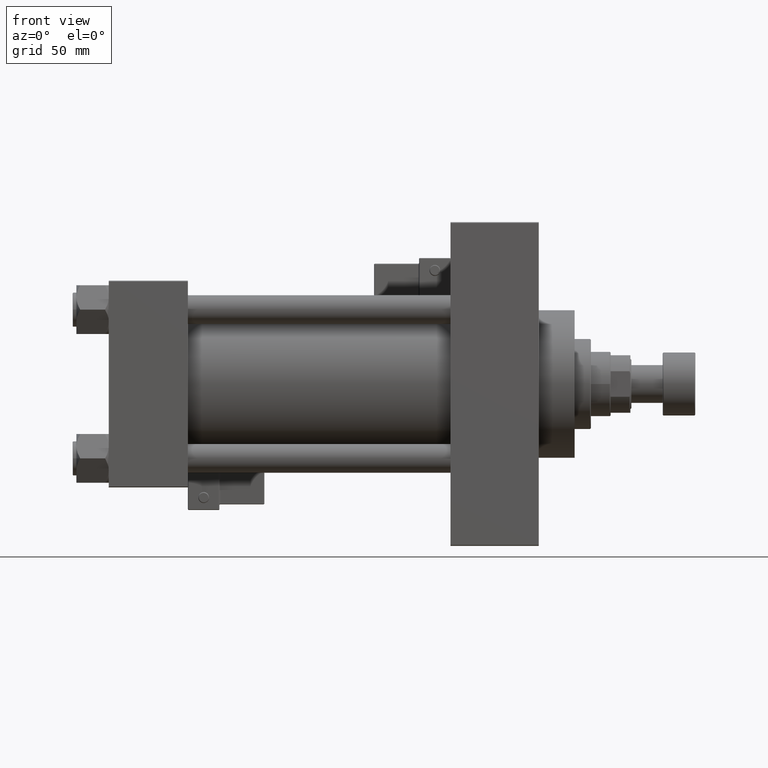
[diagram: clean part render]
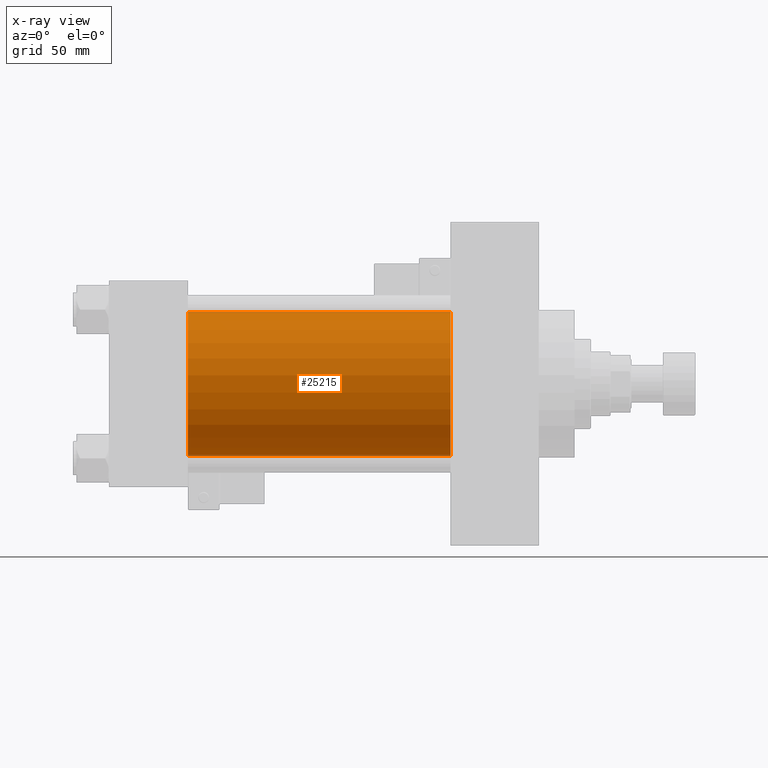
[diagram: x-ray — body ghosted, one internal face saturated and labeled with its STEP entity id]
A machine part, front view, then the same camera in x-ray: the body is ghosted and one INTERNAL B-rep face — a face not visible from any outside direction — is saturated and labeled: STEP entity #25215.
In plain terms, the highlighted cylindrical surface (partial cylindrical patch) has radius 40 mm, axis along (-1, -0, -0).
Its self-contained STEP definition (entity closure, byte-faithful):
#222 = ORIENTED_EDGE ( 'NONE', *, *, #26656, .F. ) ;
#1703 = FACE_OUTER_BOUND ( 'NONE', #46277, .T. ) ;
#2428 = VERTEX_POINT ( 'NONE', #12842 ) ;
#2452 = AXIS2_PLACEMENT_3D ( 'NONE', #43716, #8832, #24376 ) ;
#2476 = VECTOR ( 'NONE', #12441, 1000.000000000000000 ) ;
#5055 = AXIS2_PLACEMENT_3D ( 'NONE', #13259, #5875, #28785 ) ;
#5875 = DIRECTION ( 'NONE',  ( 1.000000000000000000, 0.000000000000000000, 0.000000000000000000 ) ) ;
#6160 = DIRECTION ( 'NONE',  ( -1.000000000000000000, -0.000000000000000000, -0.000000000000000000 ) ) ;
#7949 = ORIENTED_EDGE ( 'NONE', *, *, #48172, .T. ) ;
#8186 = VERTEX_POINT ( 'NONE', #9815 ) ;
#8691 = VERTEX_POINT ( 'NONE', #13705 ) ;
#8832 = DIRECTION ( 'NONE',  ( -1.000000000000000000, -0.000000000000000000, -0.000000000000000000 ) ) ;
#9815 = CARTESIAN_POINT ( 'NONE',  ( 190.0000000000000000, 2.296501982624201990E-15, -40.00000000000000000 ) ) ;
#10640 = VECTOR ( 'NONE', #6160, 1000.000000000000000 ) ;
#12441 = DIRECTION ( 'NONE',  ( -1.000000000000000000, -0.000000000000000000, -0.000000000000000000 ) ) ;
#12842 = CARTESIAN_POINT ( 'NONE',  ( 44.00000000000000000, 2.296501982624201990E-15, -40.00000000000000000 ) ) ;
#13259 = CARTESIAN_POINT ( 'NONE',  ( 190.0000000000000000, -2.602085213965210642E-15, 0.000000000000000000 ) ) ;
#13705 = CARTESIAN_POINT ( 'NONE',  ( 190.0000000000000000, -2.602085213965210642E-15, 40.00000000000000000 ) ) ;
#14173 = CARTESIAN_POINT ( 'NONE',  ( 44.00000000000000000, -2.602085213965210642E-15, 0.000000000000000000 ) ) ;
#15775 = LINE ( 'NONE', #35871, #2476 ) ;
#17223 = CYLINDRICAL_SURFACE ( 'NONE', #2452, 40.00000000000000000 ) ;
#19701 = DIRECTION ( 'NONE',  ( 1.000000000000000000, 0.000000000000000000, 0.000000000000000000 ) ) ;
#20826 = ORIENTED_EDGE ( 'NONE', *, *, #26890, .F. ) ;
#22986 = VERTEX_POINT ( 'NONE', #37700 ) ;
#23520 = DIRECTION ( 'NONE',  ( 0.000000000000000000, 0.000000000000000000, -1.000000000000000000 ) ) ;
#24376 = DIRECTION ( 'NONE',  ( 0.000000000000000000, 0.000000000000000000, 1.000000000000000000 ) ) ;
#25215 = ADVANCED_FACE ( 'NONE', ( #1703 ), #17223, .F. ) ;
#26656 = EDGE_CURVE ( 'NONE', #22986, #2428, #31771, .T. ) ;
#26890 = EDGE_CURVE ( 'NONE', #8691, #22986, #44865, .T. ) ;
#27716 = AXIS2_PLACEMENT_3D ( 'NONE', #14173, #19701, #23520 ) ;
#28785 = DIRECTION ( 'NONE',  ( 0.000000000000000000, 0.000000000000000000, -1.000000000000000000 ) ) ;
#31771 = CIRCLE ( 'NONE', #27716, 40.00000000000000000 ) ;
#31856 = CIRCLE ( 'NONE', #5055, 40.00000000000000000 ) ;
#35871 = CARTESIAN_POINT ( 'NONE',  ( 190.0000000000000000, 2.296501982624201990E-15, -40.00000000000000000 ) ) ;
#37700 = CARTESIAN_POINT ( 'NONE',  ( 44.00000000000000000, -2.602085213965210642E-15, 40.00000000000000000 ) ) ;
#41029 = CARTESIAN_POINT ( 'NONE',  ( 190.0000000000000000, -2.602085213965210642E-15, 40.00000000000000000 ) ) ;
#43673 = EDGE_CURVE ( 'NONE', #8186, #2428, #15775, .T. ) ;
#43716 = CARTESIAN_POINT ( 'NONE',  ( 190.0000000000000000, -2.602085213965210642E-15, 0.000000000000000000 ) ) ;
#44865 = LINE ( 'NONE', #41029, #10640 ) ;
#46277 = EDGE_LOOP ( 'NONE', ( #7949, #47637, #222, #20826 ) ) ;
#47637 = ORIENTED_EDGE ( 'NONE', *, *, #43673, .T. ) ;
#48172 = EDGE_CURVE ( 'NONE', #8691, #8186, #31856, .T. ) ;